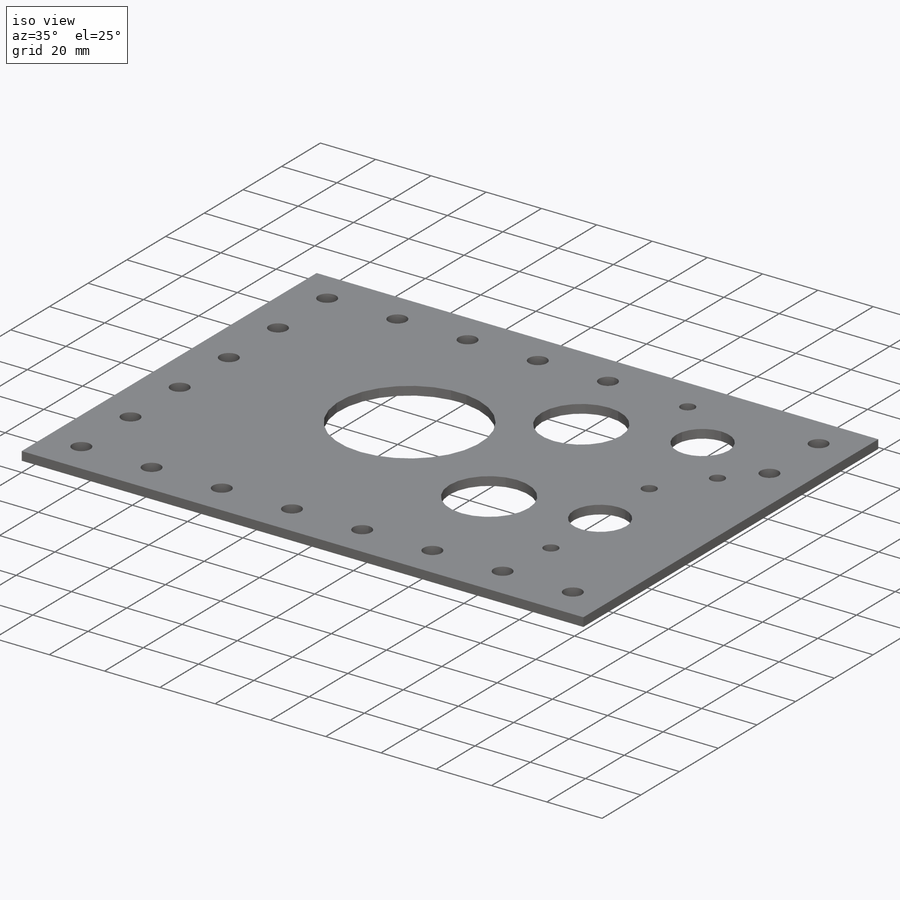
[diagram: iso view]
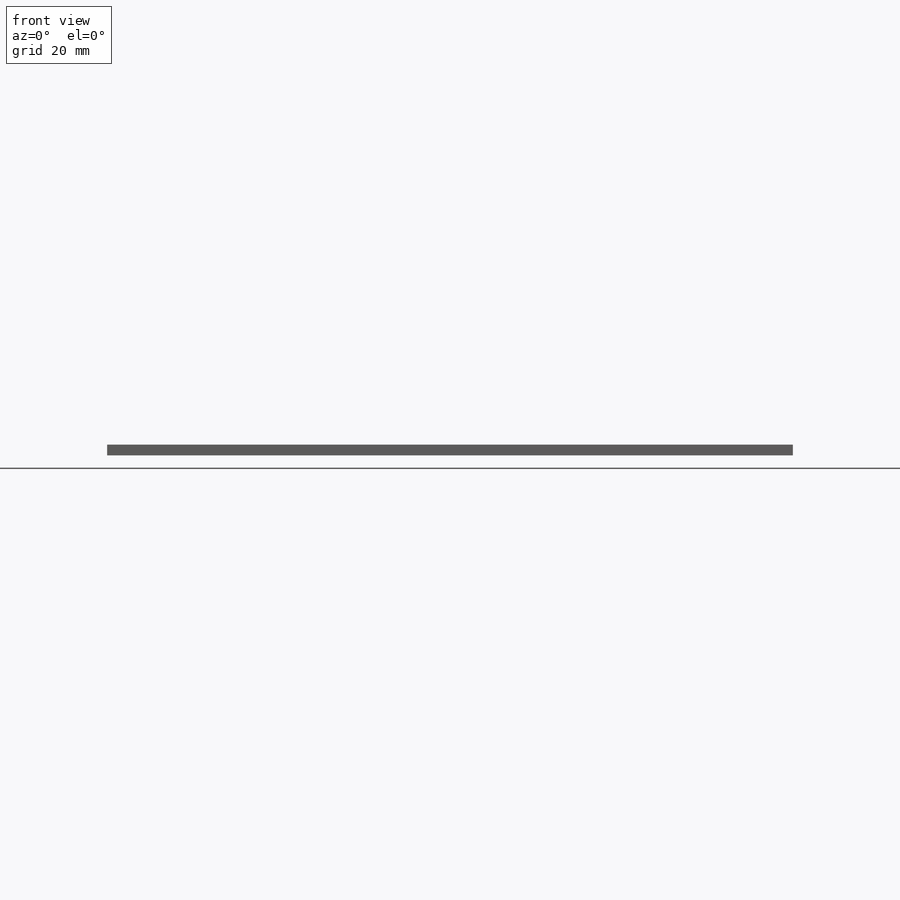
[diagram: front view]
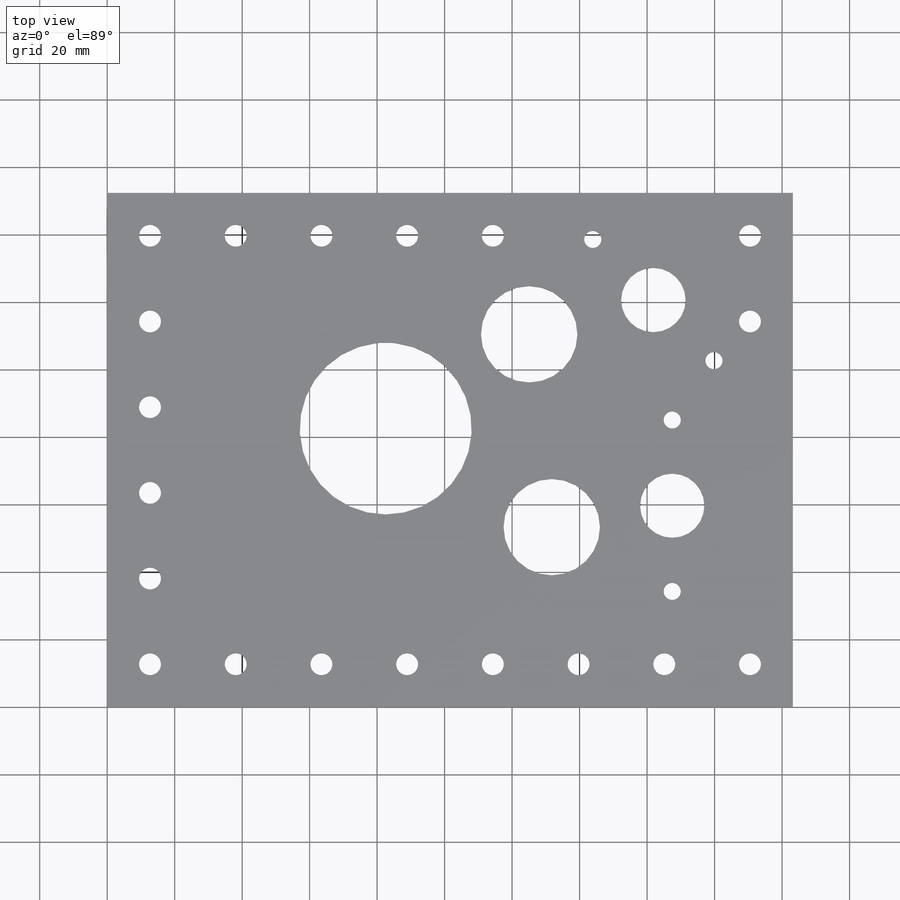
[diagram: top view]
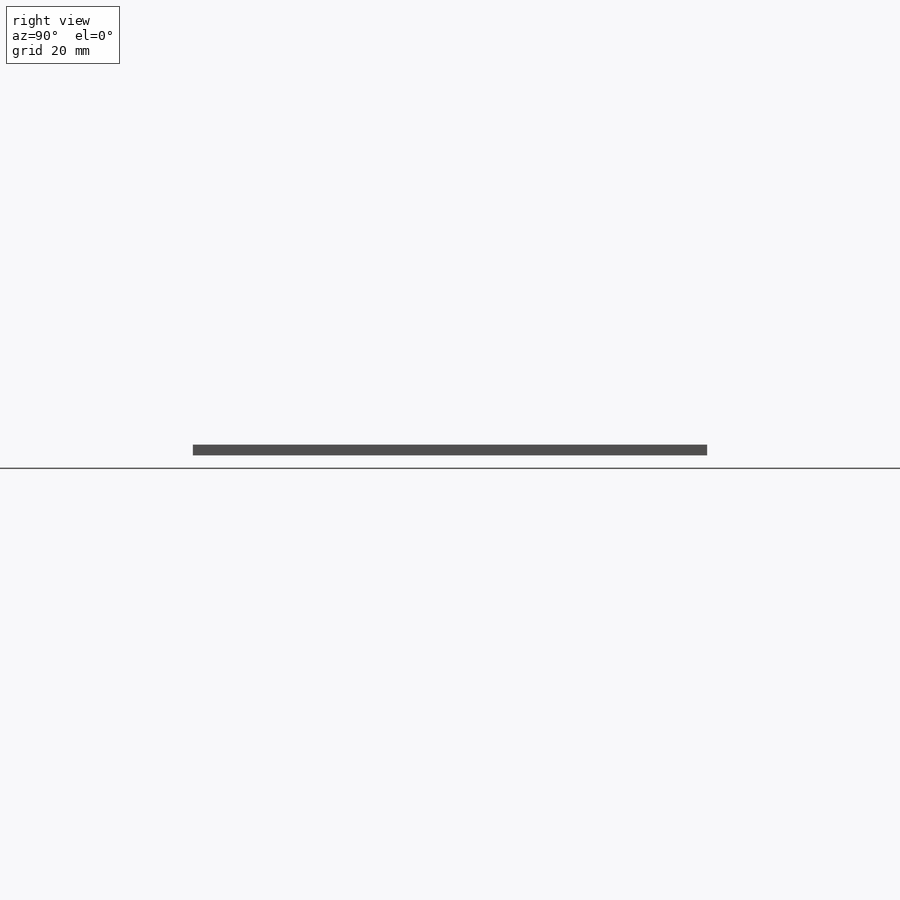
[diagram: right view]
SOLIDWORKS PART (.sldprt)
format: sldprt  version: not decoded by parser v0  size: 453,120 bytes
history: native  units: mm
features: sketch x3, cut_extrude x2, material x1, extrude x1 (+13 scaffold rows collapsed)
feature tree (20):
  scaffold x13  (default folders/planes/origin — collapsed)
  material  "6061 Alloy"
  sketch  "Sketch1"
  extrude  "Boss-Extrude1"  Depth=3.175mm
  sketch  "Sketch2"  dims[c1.D1=~1.655698mm c1.D2=8.5598mm c2.D1=6.4262mm]
  sketch  "Sketch3"  dims[c1.D1=~4.186081mm c2.D1=15.0 c2.D2=11.0 c2.D3=11.0 c2.D4=14.0]
  cut_extrude  "Cut-Extrude4"  Depth=5.08mm
  cut_extrude  "Cut-Extrude5"  Depth=50.8mm
decode coverage: 5 of 6 modeling features carry decoded parameters
note: ~ marks probable driven/reference dimensions
note: suppression state not decoded; provenance and decode notes live in map.json
